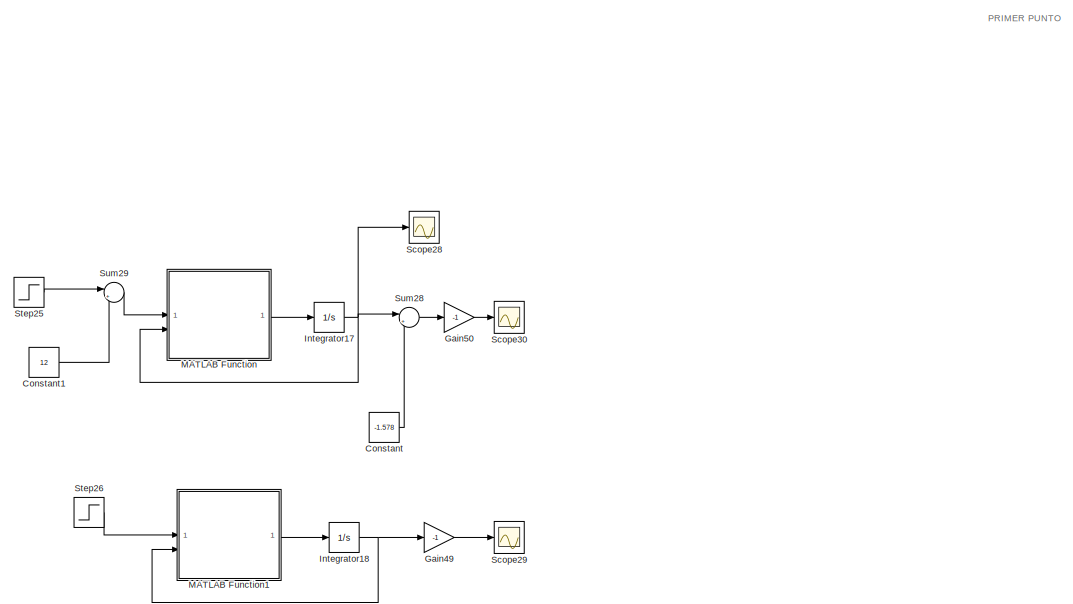
[diagram: root canvas - part 1/12, top left region]
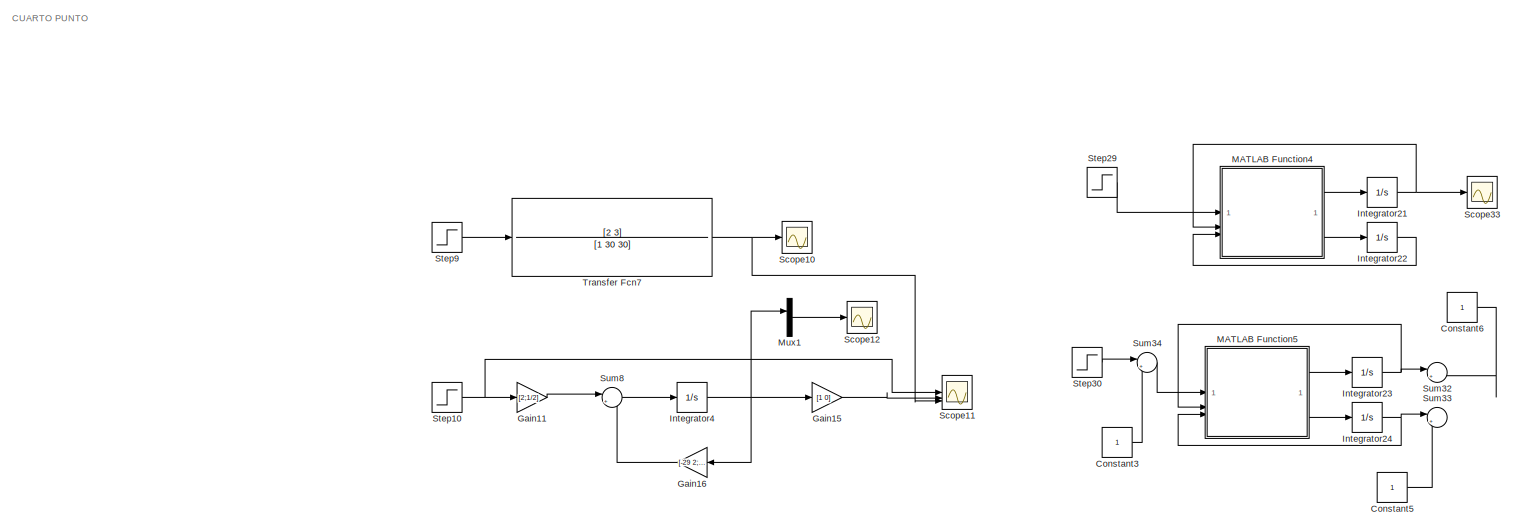
[diagram: root canvas - part 2/12, top right region]
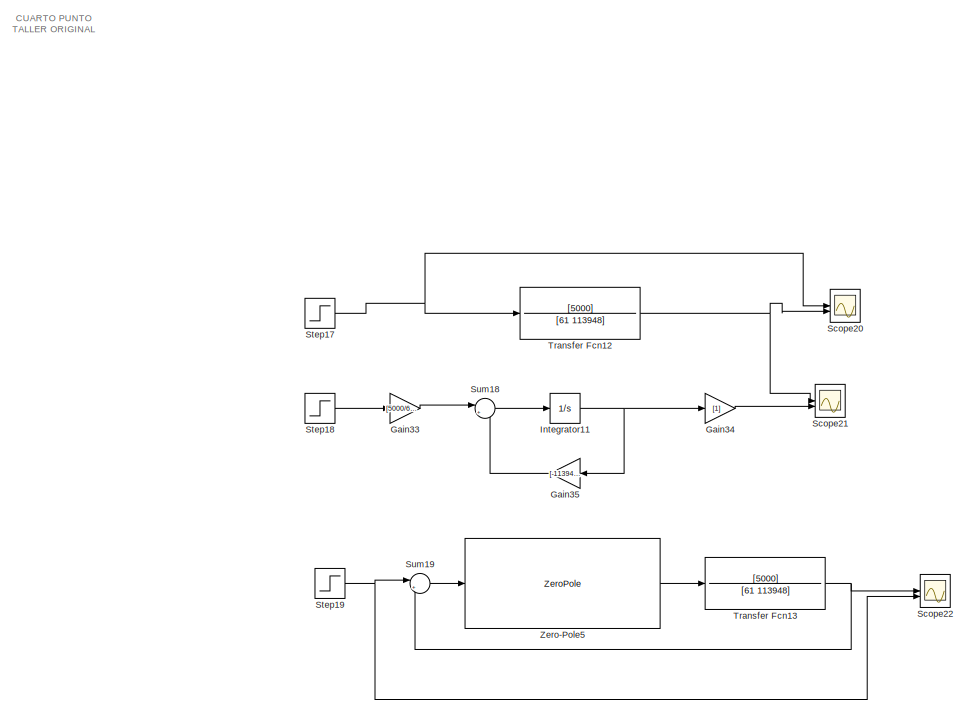
[diagram: root canvas - part 3/12, top left region]
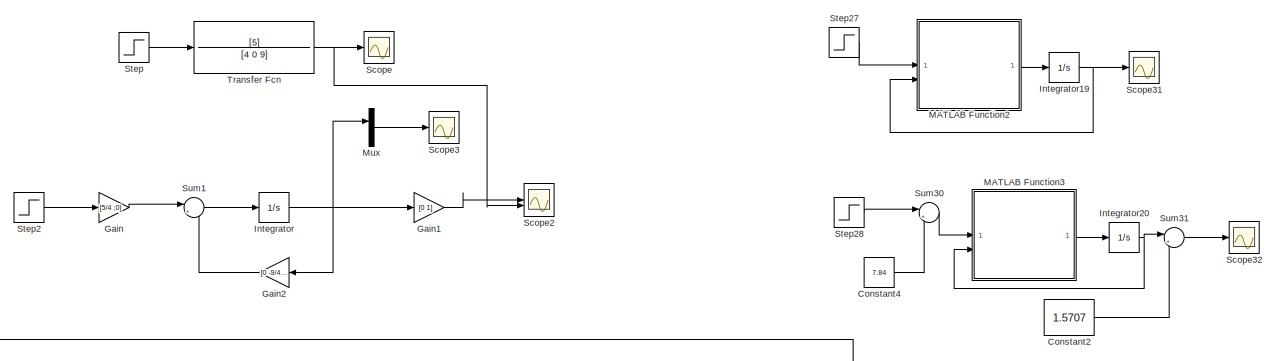
[diagram: root canvas - part 4/12, top center region]
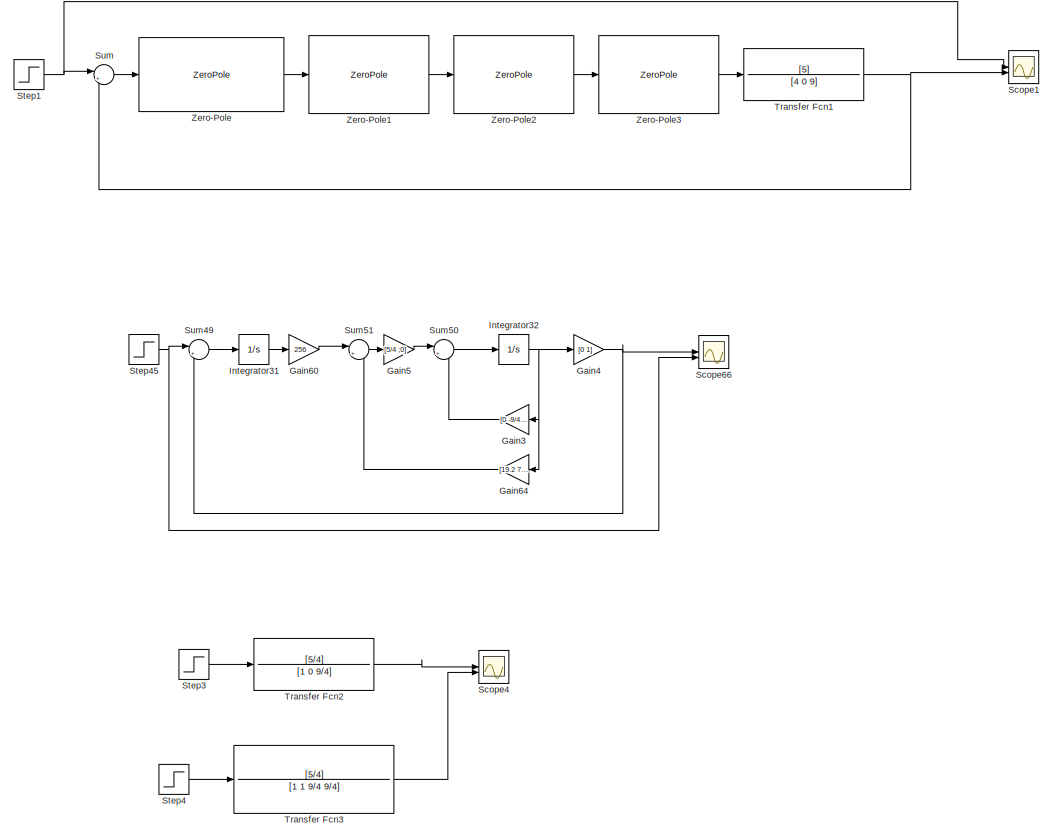
[diagram: root canvas - part 5/12, top center region]
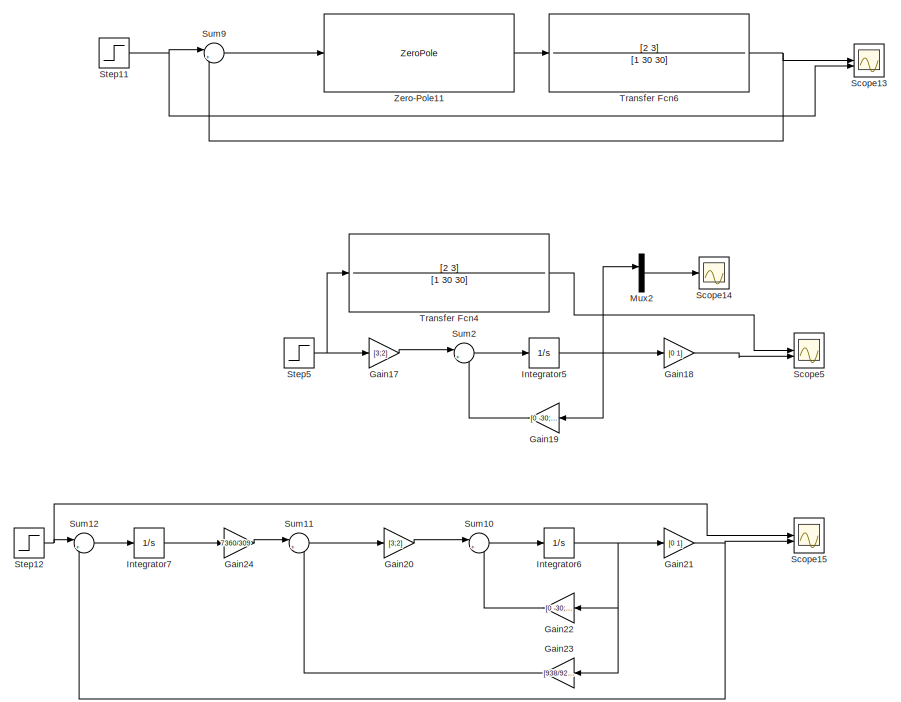
[diagram: root canvas - part 6/12, top right region]
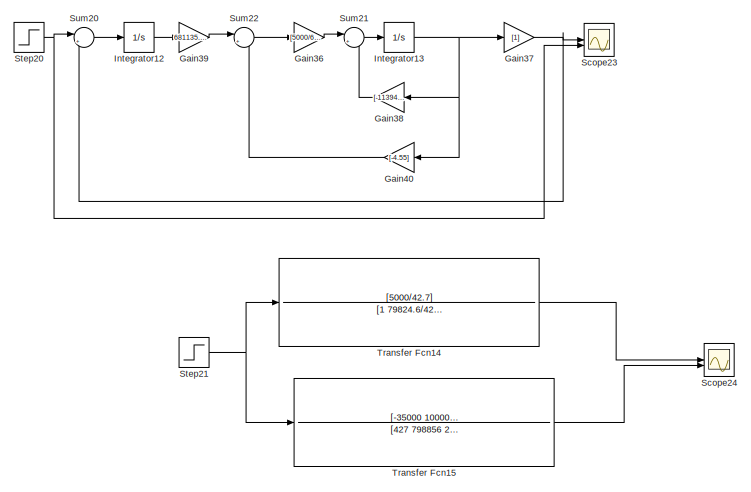
[diagram: root canvas - part 7/12, middle left region]
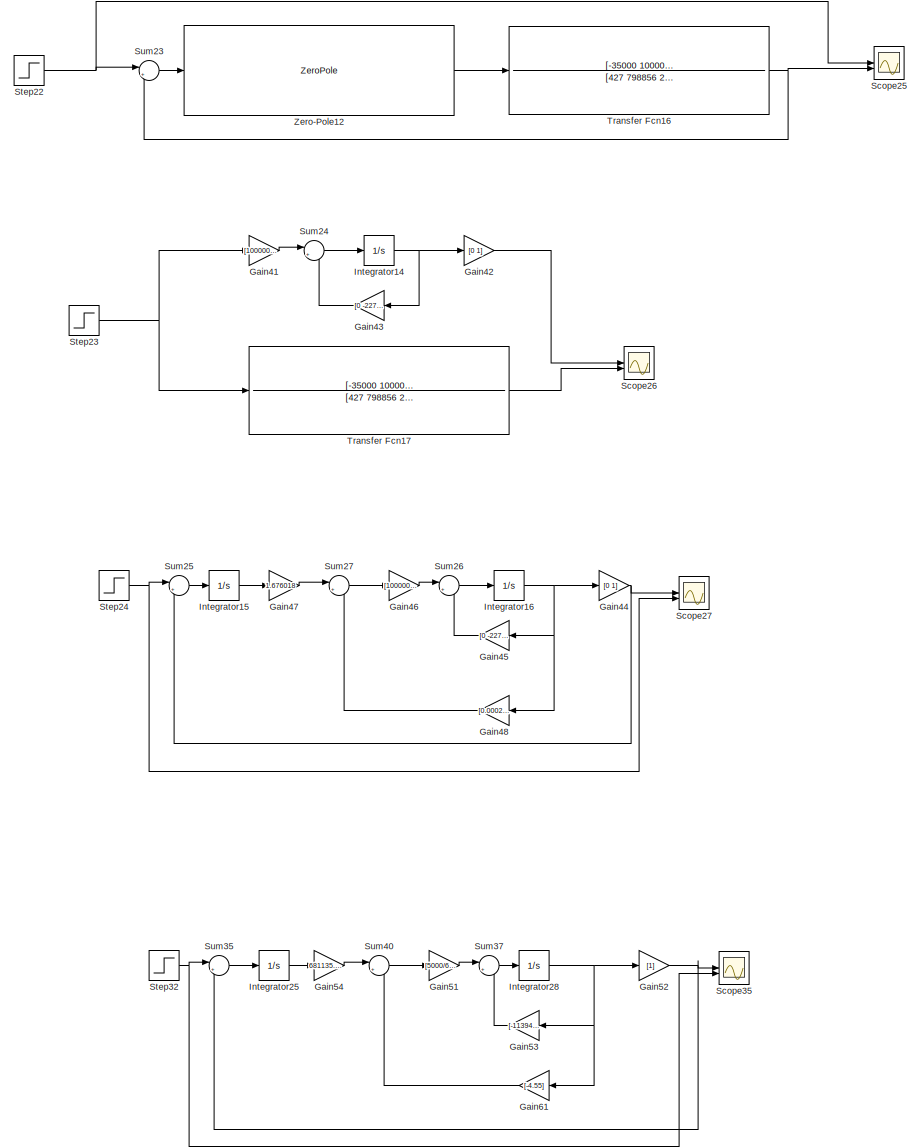
[diagram: root canvas - part 8/12, middle left region]
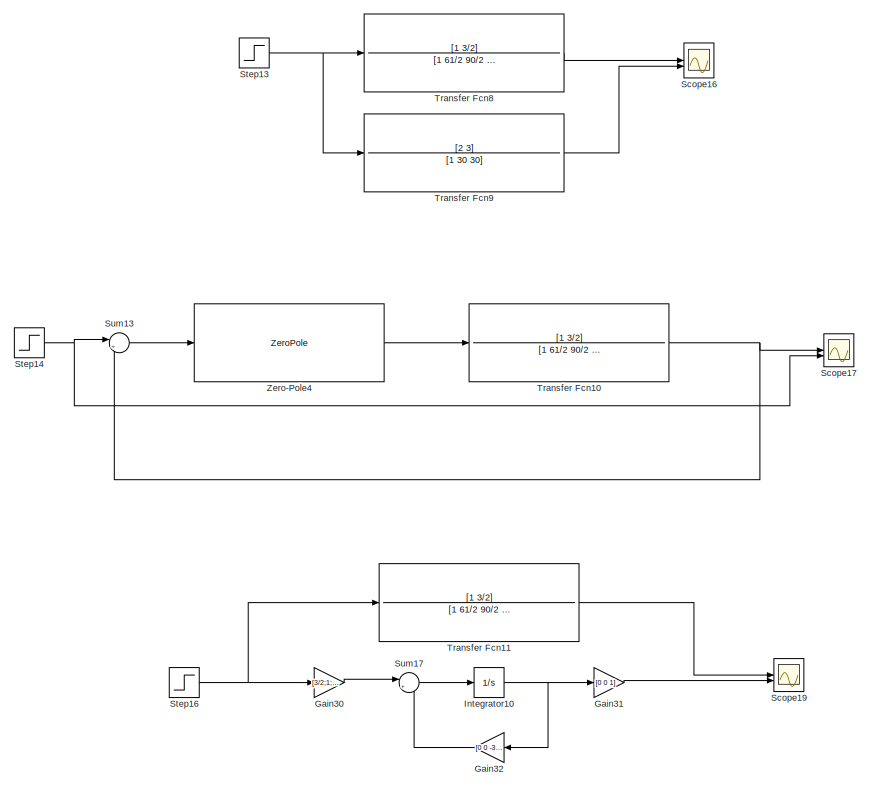
[diagram: root canvas - part 9/12, middle right region]
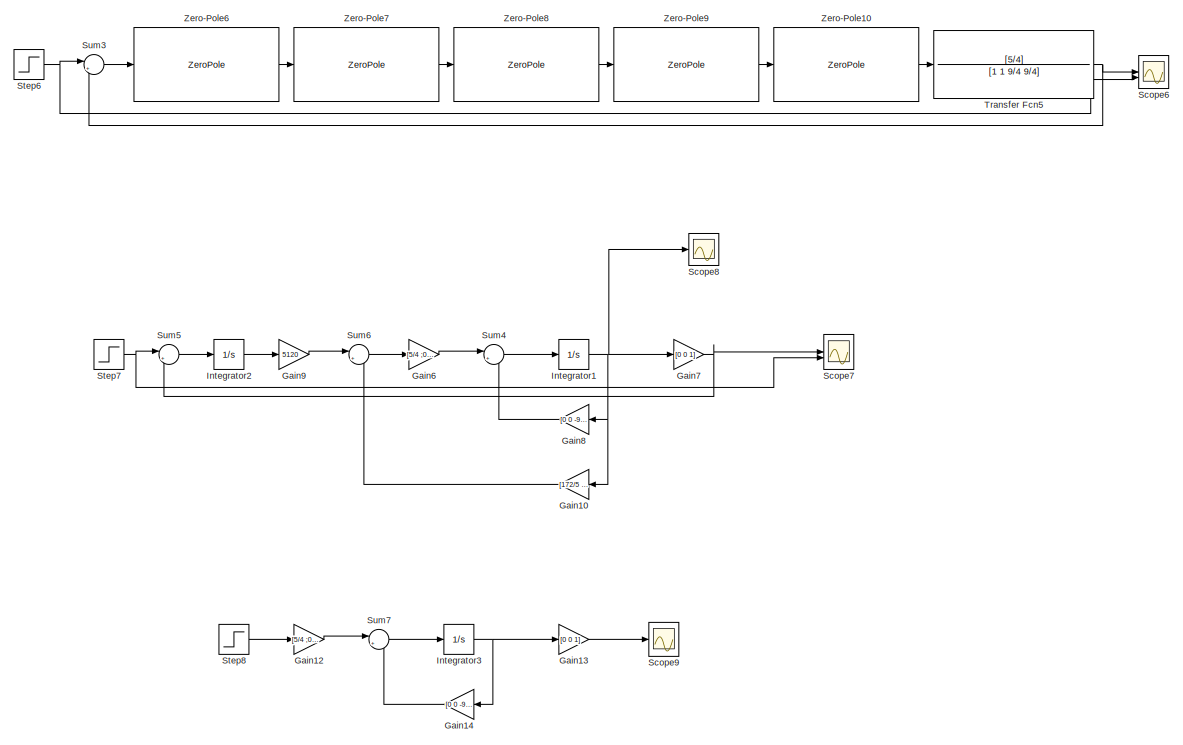
[diagram: root canvas - part 10/12, central region]
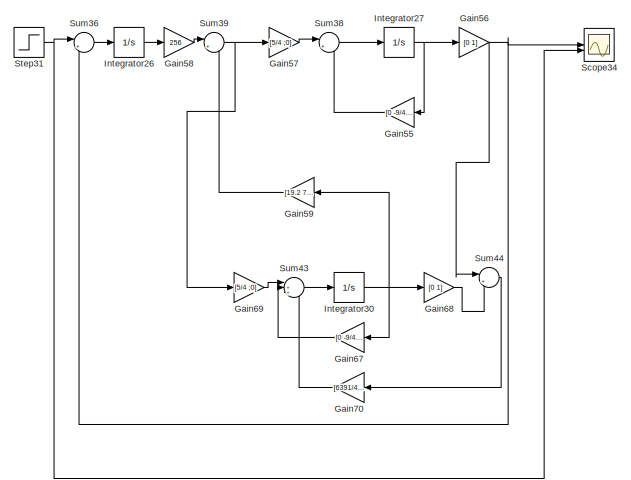
[diagram: root canvas - part 11/12, bottom center region]
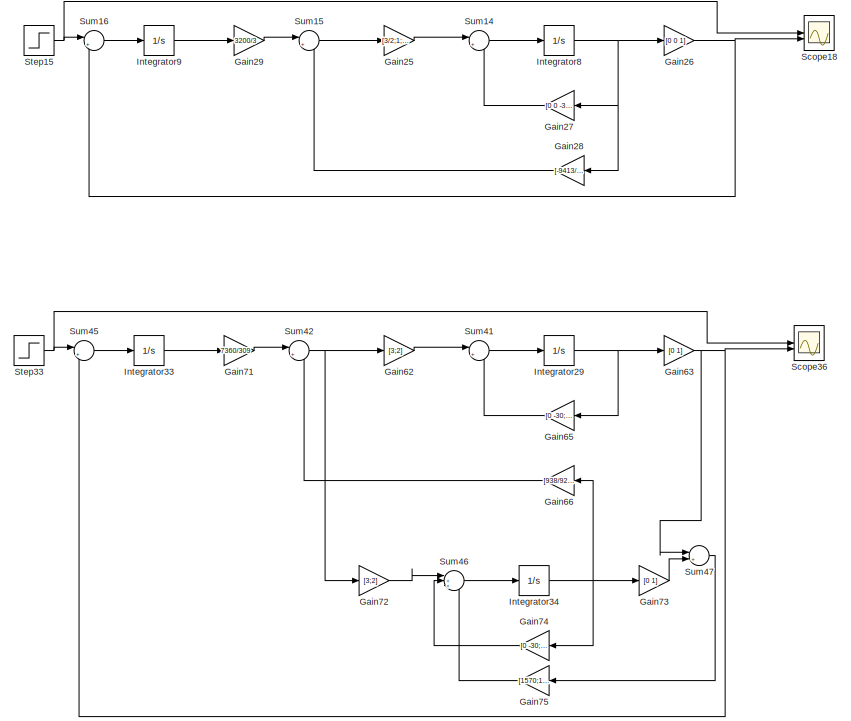
[diagram: root canvas - part 12/12, bottom right region]
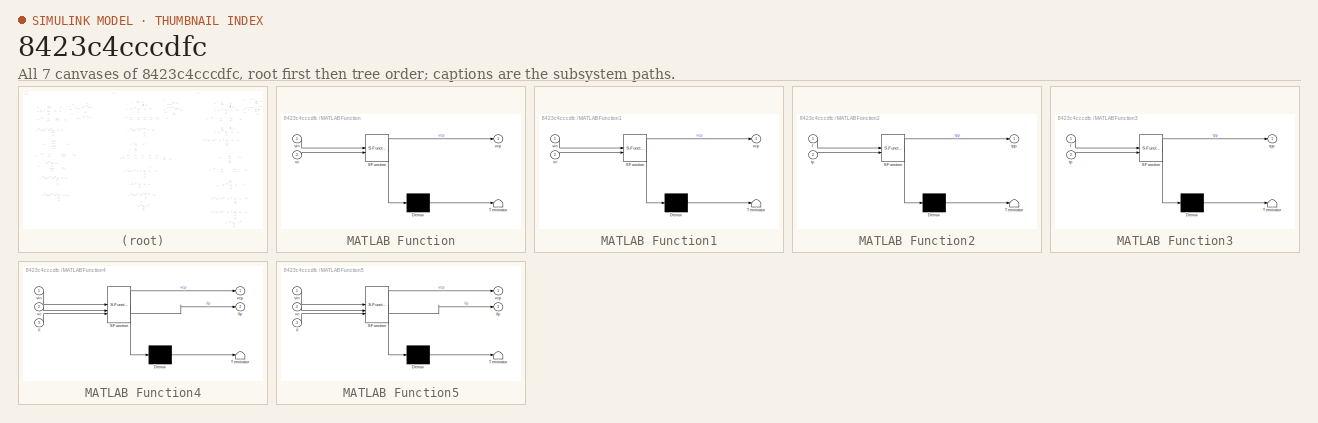
[diagram: thumbnail index - all 7 canvases of the model, root first then tree order]
MODEL slx_8423c4cccdfc
KIND model
CONFIG AbsTol = auto
CONFIG EnableMultiTasking = off
CONFIG FixedStep = auto
CONFIG MaxStep = auto
CONFIG MinStep = auto
CONFIG RelTol = 1e-3
CONFIG SampleTimeConstraint = Unconstrained
CONFIG SolverName = VariableStepAuto
CONFIG StartTime = 0.0
CONFIG StopTime = 10
BLOCK [Constant] Constant
  Value = -1.578
BLOCK [Constant] Constant1
  Value = 12
BLOCK [Constant] Constant2
  Value = 1.5707
BLOCK [Constant] Constant3
BLOCK [Constant] Constant4
  Value = 7.84
BLOCK [Constant] Constant5
BLOCK [Constant] Constant6
BLOCK [Gain] Gain
  Gain = [5/4 ;0]
  Multiplication = Matrix(K*u)
BLOCK [Gain] Gain1
  Gain = [0 1]
  Multiplication = Matrix(K*u)
BLOCK [Gain] Gain10
  Gain = [172/5 2123/5 6441/5]
  Multiplication = Matrix(K*u)
  NameLocation = top
BLOCK [Gain] Gain11
  Gain = [2;1/2]
  Multiplication = Matrix(K*u)
BLOCK [Gain] Gain12
  Gain = [5/4 ;0;0]
  Multiplication = Matrix(K*u)
BLOCK [Gain] Gain13
  Gain = [0 0 1]
  Multiplication = Matrix(K*u)
BLOCK [Gain] Gain14
  Gain = [0 0 -9/4;1 0 -9/4; 0 1 -1]
  Multiplication = Matrix(K*u)
  NameLocation = top
BLOCK [Gain] Gain15
  Gain = [1 0]
  Multiplication = Matrix(K*u)
BLOCK [Gain] Gain16
  Gain = [-29 2;-1/2 -1]
  Multiplication = Matrix(K*u)
  NameLocation = top
BLOCK [Gain] Gain17
  Gain = [3;2]
  Multiplication = Matrix(K*u)
BLOCK [Gain] Gain18
  Gain = [0 1]
  Multiplication = Matrix(K*u)
BLOCK [Gain] Gain19
  Gain = [0 -30;1 -30]
  Multiplication = Matrix(K*u)
  NameLocation = top
BLOCK [Gain] Gain2
  Gain = [0 -9/4;1 0]
  Multiplication = Matrix(K*u)
  NameLocation = top
BLOCK [Gain] Gain20
  Gain = [3;2]
  Multiplication = Matrix(K*u)
BLOCK [Gain] Gain21
  Gain = [0 1]
  Multiplication = Matrix(K*u)
BLOCK [Gain] Gain22
  Gain = [0 -30;1 -30]
  Multiplication = Matrix(K*u)
  NameLocation = top
BLOCK [Gain] Gain23
  Gain = [938/927 1738/309]
  Multiplication = Matrix(K*u)
  NameLocation = top
BLOCK [Gain] Gain24
  Gain = 7360/309
BLOCK [Gain] Gain25
  Gain = [3/2;1;0]
  Multiplication = Matrix(K*u)
BLOCK [Gain] Gain26
  Gain = [0 0 1]
  Multiplication = Matrix(K*u)
BLOCK [Gain] Gain27
  Gain = [0 0 -30/2;1 0 -90/2; 0 1 -61/2]
  Multiplication = Matrix(K*u)
  NameLocation = top
BLOCK [Gain] Gain28
  Gain = [-9413/3306 12167/204 4051/136]
  Multiplication = Matrix(K*u)
  NameLocation = top
BLOCK [Gain] Gain29
  Gain = 3200/3
BLOCK [Gain] Gain3
  Gain = [0 -9/4;1 0]
  Multiplication = Matrix(K*u)
  NameLocation = top
BLOCK [Gain] Gain30
  Gain = [3/2;1;0]
  Multiplication = Matrix(K*u)
BLOCK [Gain] Gain31
  Gain = [0 0 1]
  Multiplication = Matrix(K*u)
BLOCK [Gain] Gain32
  Gain = [0 0 -30/2;1 0 -90/2; 0 1 -61/2]
  Multiplication = Matrix(K*u)
  NameLocation = top
BLOCK [Gain] Gain33
  Gain = [5000/61]
  Multiplication = Matrix(K*u)
BLOCK [Gain] Gain34
  Gain = [1]
  Multiplication = Matrix(K*u)
BLOCK [Gain] Gain35
  Gain = [-113948/61]
  Multiplication = Matrix(K*u)
  NameLocation = top
BLOCK [Gain] Gain36
  Gain = [5000/61]
  Multiplication = Matrix(K*u)
BLOCK [Gain] Gain37
  Gain = [1]
  Multiplication = Matrix(K*u)
BLOCK [Gain] Gain38
  Gain = [-113948/61]
  Multiplication = Matrix(K*u)
  NameLocation = top
BLOCK [Gain] Gain39
  Gain = 681135.56
BLOCK [Gain] Gain4
  Gain = [0 1]
  Multiplication = Matrix(K*u)
BLOCK [Gain] Gain40
  Gain = [-4.55]
  Multiplication = Matrix(K*u)
  NameLocation = top
BLOCK [Gain] Gain41
  Gain = [100000/427; -35000/427]
  Multiplication = Matrix(K*u)
BLOCK [Gain] Gain42
  Gain = [0 1]
  Multiplication = Matrix(K*u)
BLOCK [Gain] Gain43
  Gain = [0 -2278960/427; 1 -798856/427]
  Multiplication = Matrix(K*u)
  NameLocation = top
BLOCK [Gain] Gain44
  Gain = [0 1]
  Multiplication = Matrix(K*u)
BLOCK [Gain] Gain45
  Gain = [0 -2278960/427; 1 -798856/427]
  Multiplication = Matrix(K*u)
  NameLocation = top
BLOCK [Gain] Gain46
  Gain = [100000/427; -35000/427]
  Multiplication = Matrix(K*u)
BLOCK [Gain] Gain47
  Gain = 1.676018
BLOCK [Gain] Gain48
  Gain = [0.000286 22.3614]
  Multiplication = Matrix(K*u)
  NameLocation = top
BLOCK [Gain] Gain49
  Gain = -1
BLOCK [Gain] Gain5
  Gain = [5/4 ;0]
  Multiplication = Matrix(K*u)
BLOCK [Gain] Gain50
  Gain = -1
BLOCK [Gain] Gain51
  Gain = [5000/61]
  Multiplication = Matrix(K*u)
BLOCK [Gain] Gain52
  Gain = [1]
  Multiplication = Matrix(K*u)
BLOCK [Gain] Gain53
  Gain = [-113948/61]
  Multiplication = Matrix(K*u)
  NameLocation = top
BLOCK [Gain] Gain54
  Gain = 681135.56
BLOCK [Gain] Gain55
  Gain = [0 -9/4;1 0]
  Multiplication = Matrix(K*u)
  NameLocation = top
BLOCK [Gain] Gain56
  Gain = [0 1]
  Multiplication = Matrix(K*u)
BLOCK [Gain] Gain57
  Gain = [5/4 ;0]
  Multiplication = Matrix(K*u)
BLOCK [Gain] Gain58
  Gain = 256
BLOCK [Gain] Gain59
  Gain = [19.2 75]
  Multiplication = Matrix(K*u)
  NameLocation = top
BLOCK [Gain] Gain6
  Gain = [5/4 ;0;0]
  Multiplication = Matrix(K*u)
BLOCK [Gain] Gain60
  Gain = 256
BLOCK [Gain] Gain61
  Gain = [-4.55]
  Multiplication = Matrix(K*u)
  NameLocation = top
BLOCK [Gain] Gain62
  Gain = [3;2]
  Multiplication = Matrix(K*u)
BLOCK [Gain] Gain63
  Gain = [0 1]
  Multiplication = Matrix(K*u)
BLOCK [Gain] Gain64
  Gain = [19.2 75]
  Multiplication = Matrix(K*u)
  NameLocation = top
BLOCK [Gain] Gain65
  Gain = [0 -30;1 -30]
  Multiplication = Matrix(K*u)
  NameLocation = top
BLOCK [Gain] Gain66
  Gain = [938/927 1738/309]
  Multiplication = Matrix(K*u)
  NameLocation = top
BLOCK [Gain] Gain67
  Gain = [0 -9/4;1 0]
  Multiplication = Matrix(K*u)
  NameLocation = top
BLOCK [Gain] Gain68
  Gain = [0 1]
  Multiplication = Matrix(K*u)
BLOCK [Gain] Gain69
  Gain = [5/4 ;0]
  Multiplication = Matrix(K*u)
BLOCK [Gain] Gain7
  Gain = [0 0 1]
  Multiplication = Matrix(K*u)
BLOCK [Gain] Gain70
  Gain = [6391/4;40]
  Multiplication = Matrix(K*u)
  NameLocation = top
BLOCK [Gain] Gain71
  Gain = 7360/309
BLOCK [Gain] Gain72
  Gain = [3;2]
  Multiplication = Matrix(K*u)
BLOCK [Gain] Gain73
  Gain = [0 1]
  Multiplication = Matrix(K*u)
BLOCK [Gain] Gain74
  Gain = [0 -30;1 -30]
  Multiplication = Matrix(K*u)
  NameLocation = top
BLOCK [Gain] Gain75
  Gain = [1570;10]
  Multiplication = Matrix(K*u)
  NameLocation = top
BLOCK [Gain] Gain8
  Gain = [0 0 -9/4;1 0 -9/4; 0 1 -1]
  Multiplication = Matrix(K*u)
  NameLocation = top
BLOCK [Gain] Gain9
  Gain = 5120
BLOCK [Integrator] Integrator
BLOCK [Integrator] Integrator1
BLOCK [Integrator] Integrator10
BLOCK [Integrator] Integrator11
BLOCK [Integrator] Integrator12
BLOCK [Integrator] Integrator13
BLOCK [Integrator] Integrator14
BLOCK [Integrator] Integrator15
BLOCK [Integrator] Integrator16
BLOCK [Integrator] Integrator17
BLOCK [Integrator] Integrator18
BLOCK [Integrator] Integrator19
BLOCK [Integrator] Integrator2
BLOCK [Integrator] Integrator20
BLOCK [Integrator] Integrator21
BLOCK [Integrator] Integrator22
BLOCK [Integrator] Integrator23
BLOCK [Integrator] Integrator24
BLOCK [Integrator] Integrator25
BLOCK [Integrator] Integrator26
BLOCK [Integrator] Integrator27
BLOCK [Integrator] Integrator28
BLOCK [Integrator] Integrator29
BLOCK [Integrator] Integrator3
BLOCK [Integrator] Integrator30
BLOCK [Integrator] Integrator31
BLOCK [Integrator] Integrator32
BLOCK [Integrator] Integrator33
BLOCK [Integrator] Integrator34
BLOCK [Integrator] Integrator4
BLOCK [Integrator] Integrator5
BLOCK [Integrator] Integrator6
BLOCK [Integrator] Integrator7
BLOCK [Integrator] Integrator8
BLOCK [Integrator] Integrator9
BLOCK [SubSystem] MATLAB Function
  ErrorFcn = Stateflow.Translate.translate
  PermitHierarchicalResolution = ExplicitOnly
  SFBlockType = MATLAB Function
  TreatAsAtomicUnit = on
BLOCK [Demux] MATLAB Function/ Demux 
  Outputs = 1
BLOCK [S-Function] MATLAB Function/ SFunction 
  EnableBusSupport = on
  FunctionName = sf_sfun
  PortCounts = [2 2]
  SFcnIsStateOwnerBlock = off
  SFunctionDeploymentMode = off
  Tag = Stateflow S-Function 2
BLOCK [Terminator] MATLAB Function/ Terminator 
BLOCK [Inport] MATLAB Function/vc
  Port = 2
BLOCK [Outport] MATLAB Function/vcp
BLOCK [Inport] MATLAB Function/vin
BLOCK [SubSystem] MATLAB Function1
  ErrorFcn = Stateflow.Translate.translate
  PermitHierarchicalResolution = ExplicitOnly
  SFBlockType = MATLAB Function
  TreatAsAtomicUnit = on
BLOCK [Demux] MATLAB Function1/ Demux 
  Outputs = 1
BLOCK [S-Function] MATLAB Function1/ SFunction 
  EnableBusSupport = on
  FunctionName = sf_sfun
  PortCounts = [2 2]
  SFcnIsStateOwnerBlock = off
  SFunctionDeploymentMode = off
  Tag = Stateflow S-Function 1
BLOCK [Terminator] MATLAB Function1/ Terminator 
BLOCK [Inport] MATLAB Function1/vc
  Port = 2
BLOCK [Outport] MATLAB Function1/vcp
BLOCK [Inport] MATLAB Function1/vin
BLOCK [SubSystem] MATLAB Function2
  ErrorFcn = Stateflow.Translate.translate
  PermitHierarchicalResolution = ExplicitOnly
  SFBlockType = MATLAB Function
  TreatAsAtomicUnit = on
BLOCK [Demux] MATLAB Function2/ Demux 
  Outputs = 1
BLOCK [S-Function] MATLAB Function2/ SFunction 
  EnableBusSupport = on
  FunctionName = sf_sfun
  PortCounts = [2 2]
  SFcnIsStateOwnerBlock = off
  SFunctionDeploymentMode = off
  Tag = Stateflow S-Function 3
BLOCK [Terminator] MATLAB Function2/ Terminator 
BLOCK [Inport] MATLAB Function2/f
BLOCK [Inport] MATLAB Function2/tp
  Port = 2
BLOCK [Outport] MATLAB Function2/tpp
BLOCK [SubSystem] MATLAB Function3
  ErrorFcn = Stateflow.Translate.translate
  PermitHierarchicalResolution = ExplicitOnly
  SFBlockType = MATLAB Function
  TreatAsAtomicUnit = on
BLOCK [Demux] MATLAB Function3/ Demux 
  Outputs = 1
BLOCK [S-Function] MATLAB Function3/ SFunction 
  EnableBusSupport = on
  FunctionName = sf_sfun
  PortCounts = [2 2]
  SFcnIsStateOwnerBlock = off
  SFunctionDeploymentMode = off
  Tag = Stateflow S-Function 4
BLOCK [Terminator] MATLAB Function3/ Terminator 
BLOCK [Inport] MATLAB Function3/f
BLOCK [Inport] MATLAB Function3/tp
  Port = 2
BLOCK [Outport] MATLAB Function3/tpp
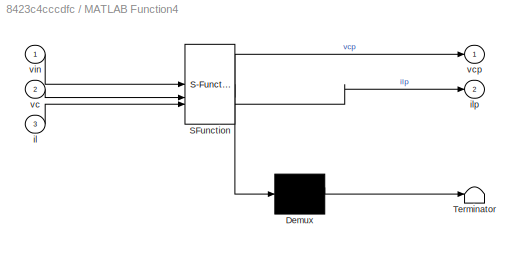
BLOCK [SubSystem] MATLAB Function4
  ErrorFcn = Stateflow.Translate.translate
  PermitHierarchicalResolution = ExplicitOnly
  SFBlockType = MATLAB Function
  TreatAsAtomicUnit = on
BLOCK [Demux] MATLAB Function4/ Demux 
  Outputs = 1
BLOCK [S-Function] MATLAB Function4/ SFunction 
  EnableBusSupport = on
  FunctionName = sf_sfun
  PortCounts = [3 3]
  SFcnIsStateOwnerBlock = off
  SFunctionDeploymentMode = off
  Tag = Stateflow S-Function 5
BLOCK [Terminator] MATLAB Function4/ Terminator 
BLOCK [Inport] MATLAB Function4/il
  Port = 3
BLOCK [Outport] MATLAB Function4/ilp
  Port = 2
BLOCK [Inport] MATLAB Function4/vc
  Port = 2
BLOCK [Outport] MATLAB Function4/vcp
BLOCK [Inport] MATLAB Function4/vin
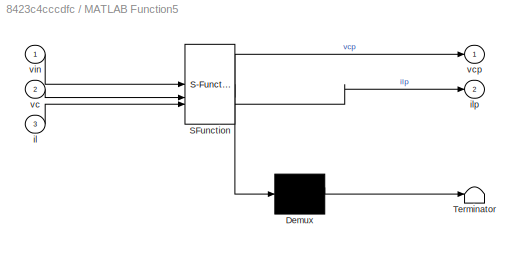
BLOCK [SubSystem] MATLAB Function5
  ErrorFcn = Stateflow.Translate.translate
  PermitHierarchicalResolution = ExplicitOnly
  SFBlockType = MATLAB Function
  TreatAsAtomicUnit = on
BLOCK [Demux] MATLAB Function5/ Demux 
  Outputs = 1
BLOCK [S-Function] MATLAB Function5/ SFunction 
  EnableBusSupport = on
  FunctionName = sf_sfun
  PortCounts = [3 3]
  SFcnIsStateOwnerBlock = off
  SFunctionDeploymentMode = off
  Tag = Stateflow S-Function 6
BLOCK [Terminator] MATLAB Function5/ Terminator 
BLOCK [Inport] MATLAB Function5/il
  Port = 3
BLOCK [Outport] MATLAB Function5/ilp
  Port = 2
BLOCK [Inport] MATLAB Function5/vc
  Port = 2
BLOCK [Outport] MATLAB Function5/vcp
BLOCK [Inport] MATLAB Function5/vin
BLOCK [Mux] Mux
  DisplayOption = bar
  Inputs = 1
BLOCK [Mux] Mux1
  DisplayOption = bar
  Inputs = 1
BLOCK [Mux] Mux2
  DisplayOption = bar
  Inputs = 1
BLOCK [Scope] Scope
  Floating = off
  NumInputPorts = 1
  ScopeSpecificationString = Simulink.scopes.TimeScopeBlockCfg('CurrentConfiguration', extmgr.ConfigurationSet(extmgr.Configuration('Core','General UI',true),extmgr.Configuration('Core','Source UI',true),extmgr.Configuration('Sources','WiredSimulink',true),extmgr.Configuration('Visuals','Time Domain',true,'SerializedDisplays',{struct('MinYLimReal','-0.1389','MaxYLimReal','1.2501','YLabelReal','','MinYLimMag','0.00000','MaxYLi...<+1358ch>
BLOCK [Scope] Scope1
  Floating = off
  NumInputPorts = 2
  ScopeSpecificationString = Simulink.scopes.TimeScopeBlockCfg('CurrentConfiguration', extmgr.ConfigurationSet(extmgr.Configuration('Core','General UI',true),extmgr.Configuration('Core','Source UI',true),extmgr.Configuration('Sources','WiredSimulink',true,'DataLoggingVariableName','ScopeData1'),extmgr.Configuration('Visuals','Time Domain',true,'SerializedDisplays',{struct('MinYLimReal','-0.19596','MaxYLimReal','1.7636','YLabe...<+1432ch>
BLOCK [Scope] Scope10
  Floating = off
  NumInputPorts = 1
  ScopeSpecificationString = Simulink.scopes.TimeScopeBlockCfg('CurrentConfiguration', extmgr.ConfigurationSet(extmgr.Configuration('Core','General UI',true),extmgr.Configuration('Core','Source UI',true),extmgr.Configuration('Sources','WiredSimulink',true,'DataLoggingVariableName','ScopeData1'),extmgr.Configuration('Visuals','Time Domain',true,'SerializedDisplays',{struct('MinYLimReal','-0.0125','MaxYLimReal','0.1125','YLabel...<+1737ch>
BLOCK [Scope] Scope11
  Floating = off
  NumInputPorts = 3
  ScopeSpecificationString = Simulink.scopes.TimeScopeBlockCfg('CurrentConfiguration', extmgr.ConfigurationSet(extmgr.Configuration('Core','General UI',true),extmgr.Configuration('Core','Source UI',true),extmgr.Configuration('Sources','WiredSimulink',true,'DataLoggingVariableName','ScopeData2'),extmgr.Configuration('Visuals','Time Domain',true,'SerializedDisplays',{struct('MinYLimReal','-0.125','MaxYLimReal','1.125','YLabelRe...<+1428ch>
BLOCK [Scope] Scope12
  Floating = off
  NumInputPorts = 1
  ScopeSpecificationString = Simulink.scopes.TimeScopeBlockCfg('CurrentConfiguration', extmgr.ConfigurationSet(extmgr.Configuration('Core','General UI',true),extmgr.Configuration('Core','Source UI',true),extmgr.Configuration('Sources','WiredSimulink',true,'DataLoggingVariableName','ScopeData3'),extmgr.Configuration('Visuals','Time Domain',true,'SerializedDisplays',{struct('MinYLimReal','-0.05625','MaxYLimReal','0.50625','YLab...<+1388ch>
BLOCK [Scope] Scope13
  Floating = off
  NumInputPorts = 2
  ScopeSpecificationString = Simulink.scopes.TimeScopeBlockCfg('CurrentConfiguration', extmgr.ConfigurationSet(extmgr.Configuration('Core','General UI',true),extmgr.Configuration('Core','Source UI',true),extmgr.Configuration('Sources','WiredSimulink',true,'DataLoggingVariableName','ScopeData4'),extmgr.Configuration('Visuals','Time Domain',true,'SerializedDisplays',{struct('MinYLimReal','-0.12532','MaxYLimReal','1.12785','YLab...<+1463ch>
BLOCK [Scope] Scope14
  Floating = off
  NumInputPorts = 1
  ScopeSpecificationString = Simulink.scopes.TimeScopeBlockCfg('CurrentConfiguration', extmgr.ConfigurationSet(extmgr.Configuration('Core','General UI',true),extmgr.Configuration('Core','Source UI',true),extmgr.Configuration('Sources','WiredSimulink',true,'DataLoggingVariableName','ScopeData1'),extmgr.Configuration('Visuals','Time Domain',true,'SerializedDisplays',{struct('MinYLimReal','-0.05625','MaxYLimReal','0.50625','YLab...<+1388ch>
BLOCK [Scope] Scope15
  Floating = off
  NumInputPorts = 2
  ScopeSpecificationString = Simulink.scopes.TimeScopeBlockCfg('CurrentConfiguration', extmgr.ConfigurationSet(extmgr.Configuration('Core','General UI',true),extmgr.Configuration('Core','Source UI',true),extmgr.Configuration('Sources','WiredSimulink',true,'DataLoggingVariableName','ScopeData3'),extmgr.Configuration('Visuals','Time Domain',true,'SerializedDisplays',{struct('MinYLimReal','-0.125','MaxYLimReal','1.125','YLabelRe...<+1412ch>
BLOCK [Scope] Scope16
  Floating = off
  NumInputPorts = 2
  ScopeSpecificationString = Simulink.scopes.TimeScopeBlockCfg('CurrentConfiguration', extmgr.ConfigurationSet(extmgr.Configuration('Core','General UI',true),extmgr.Configuration('Core','Source UI',true),extmgr.Configuration('Sources','WiredSimulink',true,'DataLoggingVariableName','ScopeData1'),extmgr.Configuration('Visuals','Time Domain',true,'SerializedDisplays',{struct('MinYLimReal','-1.00000','MaxYLimReal','1.00000','YLab...<+1438ch>
BLOCK [Scope] Scope17
  Floating = off
  NumInputPorts = 2
  ScopeSpecificationString = Simulink.scopes.TimeScopeBlockCfg('CurrentConfiguration', extmgr.ConfigurationSet(extmgr.Configuration('Core','General UI',true),extmgr.Configuration('Core','Source UI',true),extmgr.Configuration('Sources','WiredSimulink',true,'DataLoggingVariableName','ScopeData2'),extmgr.Configuration('Visuals','Time Domain',true,'SerializedDisplays',{struct('MinYLimReal','-1.00000','MaxYLimReal','1.00000','YLab...<+1464ch>
BLOCK [Scope] Scope18
  Floating = off
  NumInputPorts = 2
  ScopeSpecificationString = Simulink.scopes.TimeScopeBlockCfg('CurrentConfiguration', extmgr.ConfigurationSet(extmgr.Configuration('Core','General UI',true),extmgr.Configuration('Core','Source UI',true),extmgr.Configuration('Sources','WiredSimulink',true,'DataLoggingVariableName','ScopeData3'),extmgr.Configuration('Visuals','Time Domain',true,'SerializedDisplays',{struct('MinYLimReal','-1.00000','MaxYLimReal','1.00000','YLab...<+1424ch>
BLOCK [Scope] Scope19
  Floating = off
  NumInputPorts = 2
  ScopeSpecificationString = Simulink.scopes.TimeScopeBlockCfg('CurrentConfiguration', extmgr.ConfigurationSet(extmgr.Configuration('Core','General UI',true),extmgr.Configuration('Core','Source UI',true),extmgr.Configuration('Sources','WiredSimulink',true,'DataLoggingVariableName','ScopeData4'),extmgr.Configuration('Visuals','Time Domain',true,'SerializedDisplays',{struct('MinYLimReal','-1.00000','MaxYLimReal','1.00000','YLab...<+1464ch>
BLOCK [Scope] Scope2
  Floating = off
  NumInputPorts = 2
  ScopeSpecificationString = Simulink.scopes.TimeScopeBlockCfg('CurrentConfiguration', extmgr.ConfigurationSet(extmgr.Configuration('Core','General UI',true),extmgr.Configuration('Core','Source UI',true),extmgr.Configuration('Sources','WiredSimulink',true,'DataLoggingVariableName','ScopeData2'),extmgr.Configuration('Visuals','Time Domain',true,'SerializedDisplays',{struct('MinYLimReal','-0.13889','MaxYLimReal','1.24999','YLab...<+1379ch>
BLOCK [Scope] Scope20
  Floating = off
  NumInputPorts = 2
  ScopeSpecificationString = Simulink.scopes.TimeScopeBlockCfg('CurrentConfiguration', extmgr.ConfigurationSet(extmgr.Configuration('Core','General UI',true),extmgr.Configuration('Core','Source UI',true),extmgr.Configuration('Sources','WiredSimulink',true,'DataLoggingVariableName','ScopeData5'),extmgr.Configuration('Visuals','Time Domain',true,'SerializedDisplays',{struct('MinYLimReal','-0.125','MaxYLimReal','1.125','YLabelRe...<+1406ch>
BLOCK [Scope] Scope21
  Floating = off
  NumInputPorts = 2
  ScopeSpecificationString = Simulink.scopes.TimeScopeBlockCfg('CurrentConfiguration', extmgr.ConfigurationSet(extmgr.Configuration('Core','General UI',true),extmgr.Configuration('Core','Source UI',true),extmgr.Configuration('Sources','WiredSimulink',true,'DataLoggingVariableName','ScopeData6'),extmgr.Configuration('Visuals','Time Domain',true,'SerializedDisplays',{struct('MinYLimReal','-0.00548','MaxYLimReal','0.04936','YLab...<+1382ch>
BLOCK [Scope] Scope22
  Floating = off
  NumInputPorts = 2
  ScopeSpecificationString = Simulink.scopes.TimeScopeBlockCfg('CurrentConfiguration', extmgr.ConfigurationSet(extmgr.Configuration('Core','General UI',true),extmgr.Configuration('Core','Source UI',true),extmgr.Configuration('Sources','WiredSimulink',true,'DataLoggingVariableName','ScopeData1'),extmgr.Configuration('Visuals','Time Domain',true,'SerializedDisplays',{struct('MinYLimReal','-0.20423','MaxYLimReal','1.83807','YLab...<+1382ch>
BLOCK [Scope] Scope23
  Floating = off
  NumInputPorts = 2
  ScopeSpecificationString = Simulink.scopes.TimeScopeBlockCfg('CurrentConfiguration', extmgr.ConfigurationSet(extmgr.Configuration('Core','General UI',true),extmgr.Configuration('Core','Source UI',true),extmgr.Configuration('Sources','WiredSimulink',true,'DataLoggingVariableName','ScopeData2'),extmgr.Configuration('Visuals','Time Domain',true,'SerializedDisplays',{struct('MinYLimReal','-0.21577','MaxYLimReal','1.94197','YLab...<+1406ch>
BLOCK [Scope] Scope24
  Floating = off
  NumInputPorts = 2
  ScopeSpecificationString = Simulink.scopes.TimeScopeBlockCfg('CurrentConfiguration', extmgr.ConfigurationSet(extmgr.Configuration('Core','General UI',true),extmgr.Configuration('Core','Source UI',true),extmgr.Configuration('Sources','WiredSimulink',true,'DataLoggingVariableName','ScopeData3'),extmgr.Configuration('Visuals','Time Domain',true,'SerializedDisplays',{struct('MinYLimReal','-0.05398','MaxYLimReal','0.05475','YLab...<+1423ch>
BLOCK [Scope] Scope25
  Floating = off
  NumInputPorts = 2
  ScopeSpecificationString = Simulink.scopes.TimeScopeBlockCfg('CurrentConfiguration', extmgr.ConfigurationSet(extmgr.Configuration('Core','General UI',true),extmgr.Configuration('Core','Source UI',true),extmgr.Configuration('Sources','WiredSimulink',true,'DataLoggingVariableName','ScopeData4'),extmgr.Configuration('Visuals','Time Domain',true,'SerializedDisplays',{struct('MinYLimReal','-0.2518','MaxYLimReal','1.13909','YLabe...<+1412ch>
BLOCK [Scope] Scope26
  Floating = off
  NumInputPorts = 2
  ScopeSpecificationString = Simulink.scopes.TimeScopeBlockCfg('CurrentConfiguration', extmgr.ConfigurationSet(extmgr.Configuration('Core','General UI',true),extmgr.Configuration('Core','Source UI',true),extmgr.Configuration('Sources','WiredSimulink',true,'DataLoggingVariableName','ScopeData1'),extmgr.Configuration('Visuals','Time Domain',true,'SerializedDisplays',{struct('MinYLimReal','-0.05398','MaxYLimReal','0.05475','YLab...<+1434ch>
BLOCK [Scope] Scope27
  Floating = off
  NumInputPorts = 2
  ScopeSpecificationString = Simulink.scopes.TimeScopeBlockCfg('CurrentConfiguration', extmgr.ConfigurationSet(extmgr.Configuration('Core','General UI',true),extmgr.Configuration('Core','Source UI',true),extmgr.Configuration('Sources','WiredSimulink',true,'DataLoggingVariableName','ScopeData2'),extmgr.Configuration('Visuals','Time Domain',true,'SerializedDisplays',{struct('MinYLimReal','-0.14645','MaxYLimReal','1.12738','YLab...<+1406ch>
BLOCK [Scope] Scope28
  Floating = off
  NumInputPorts = 1
  ScopeSpecificationString = Simulink.scopes.TimeScopeBlockCfg('CurrentConfiguration', extmgr.ConfigurationSet(extmgr.Configuration('Core','General UI',true),extmgr.Configuration('Core','Source UI',true),extmgr.Configuration('Sources','WiredSimulink',true,'DataLoggingVariableName','ScopeData1'),extmgr.Configuration('Visuals','Time Domain',true),extmgr.Configuration('Tools','Plot Navigation',true),extmgr.Configuration('Tools',...<+40ch>
BLOCK [Scope] Scope29
  Floating = off
  NumInputPorts = 1
  ScopeSpecificationString = Simulink.scopes.TimeScopeBlockCfg('CurrentConfiguration', extmgr.ConfigurationSet(extmgr.Configuration('Core','General UI',true),extmgr.Configuration('Core','Source UI',true),extmgr.Configuration('Sources','WiredSimulink',true,'DataLoggingVariableName','ScopeData2'),extmgr.Configuration('Visuals','Time Domain',true,'SerializedDisplays',{struct('MinYLimReal','-0.04098','MaxYLimReal','0.36885','YLab...<+1365ch>
BLOCK [Scope] Scope3
  Floating = off
  NumInputPorts = 1
  ScopeSpecificationString = Simulink.scopes.TimeScopeBlockCfg('CurrentConfiguration', extmgr.ConfigurationSet(extmgr.Configuration('Core','General UI',true),extmgr.Configuration('Core','Source UI',true),extmgr.Configuration('Sources','WiredSimulink',true,'DataLoggingVariableName','ScopeData3'),extmgr.Configuration('Visuals','Time Domain',true,'SerializedDisplays',{struct('MinYLimReal','-1.07564','MaxYLimReal','1.35407','YLab...<+1386ch>
BLOCK [Scope] Scope30
  Floating = off
  NumInputPorts = 1
  ScopeSpecificationString = Simulink.scopes.TimeScopeBlockCfg('CurrentConfiguration', extmgr.ConfigurationSet(extmgr.Configuration('Core','General UI',true),extmgr.Configuration('Core','Source UI',true),extmgr.Configuration('Sources','WiredSimulink',true,'DataLoggingVariableName','ScopeData3'),extmgr.Configuration('Visuals','Time Domain',true,'SerializedDisplays',{struct('MinYLimReal','-2.11079','MaxYLimReal','3.21708','YLab...<+1365ch>
BLOCK [Scope] Scope31
  Floating = off
  NumInputPorts = 1
  ScopeSpecificationString = Simulink.scopes.TimeScopeBlockCfg('CurrentConfiguration', extmgr.ConfigurationSet(extmgr.Configuration('Core','General UI',true),extmgr.Configuration('Core','Source UI',true),extmgr.Configuration('Sources','WiredSimulink',true,'DataLoggingVariableName','ScopeData4'),extmgr.Configuration('Visuals','Time Domain',true,'SerializedDisplays',{struct('MinYLimReal','-0.04097','MaxYLimReal','0.36875','YLab...<+1371ch>
BLOCK [Scope] Scope32
  Floating = off
  NumInputPorts = 1
  ScopeSpecificationString = Simulink.scopes.TimeScopeBlockCfg('CurrentConfiguration', extmgr.ConfigurationSet(extmgr.Configuration('Core','General UI',true),extmgr.Configuration('Core','Source UI',true),extmgr.Configuration('Sources','WiredSimulink',true,'DataLoggingVariableName','ScopeData5'),extmgr.Configuration('Visuals','Time Domain',true,'SerializedDisplays',{struct('MinYLimReal','-1.80073','MaxYLimReal','0.49953','YLab...<+1364ch>
BLOCK [Scope] Scope33
  Floating = off
  NumInputPorts = 1
  ScopeSpecificationString = Simulink.scopes.TimeScopeBlockCfg('CurrentConfiguration', extmgr.ConfigurationSet(extmgr.Configuration('Core','General UI',true),extmgr.Configuration('Core','Source UI',true),extmgr.Configuration('Sources','WiredSimulink',true,'DataLoggingVariableName','ScopeData6'),extmgr.Configuration('Visuals','Time Domain',true,'SerializedDisplays',{struct('MinYLimReal','-0.14922','MaxYLimReal','1.34294','YLab...<+1371ch>
BLOCK [Scope] Scope34
  Floating = off
  NumInputPorts = 2
  ScopeSpecificationString = Simulink.scopes.TimeScopeBlockCfg('CurrentConfiguration', extmgr.ConfigurationSet(extmgr.Configuration('Core','General UI',true),extmgr.Configuration('Core','Source UI',true),extmgr.Configuration('Sources','WiredSimulink',true,'DataLoggingVariableName','ScopeData1'),extmgr.Configuration('Visuals','Time Domain',true,'SerializedDisplays',{struct('MinYLimReal','-0.1449','MaxYLimReal','1.3041','YLabel...<+1400ch>
BLOCK [Scope] Scope35
  Floating = off
  NumInputPorts = 2
  ScopeSpecificationString = Simulink.scopes.TimeScopeBlockCfg('CurrentConfiguration', extmgr.ConfigurationSet(extmgr.Configuration('Core','General UI',true),extmgr.Configuration('Core','Source UI',true),extmgr.Configuration('Sources','WiredSimulink',true,'DataLoggingVariableName','ScopeData2'),extmgr.Configuration('Visuals','Time Domain',true,'SerializedDisplays',{struct('MinYLimReal','-0.21577','MaxYLimReal','1.94197','YLab...<+1406ch>
BLOCK [Scope] Scope36
  Floating = off
  NumInputPorts = 2
  ScopeSpecificationString = Simulink.scopes.TimeScopeBlockCfg('CurrentConfiguration', extmgr.ConfigurationSet(extmgr.Configuration('Core','General UI',true),extmgr.Configuration('Core','Source UI',true),extmgr.Configuration('Sources','WiredSimulink',true,'DataLoggingVariableName','ScopeData3'),extmgr.Configuration('Visuals','Time Domain',true,'SerializedDisplays',{struct('MinYLimReal','-0.125','MaxYLimReal','1.125','YLabelRe...<+1412ch>
BLOCK [Scope] Scope4
  Floating = off
  NumInputPorts = 2
  ScopeSpecificationString = Simulink.scopes.TimeScopeBlockCfg('CurrentConfiguration', extmgr.ConfigurationSet(extmgr.Configuration('Core','General UI',true),extmgr.Configuration('Core','Source UI',true),extmgr.Configuration('Sources','WiredSimulink',true,'DataLoggingVariableName','ScopeData2'),extmgr.Configuration('Visuals','Time Domain',true,'SerializedDisplays',{struct('MinYLimReal','-0.13889','MaxYLimReal','1.24999','YLab...<+1421ch>
BLOCK [Scope] Scope5
  Floating = off
  NumInputPorts = 2
  ScopeSpecificationString = Simulink.scopes.TimeScopeBlockCfg('CurrentConfiguration', extmgr.ConfigurationSet(extmgr.Configuration('Core','General UI',true),extmgr.Configuration('Core','Source UI',true),extmgr.Configuration('Sources','WiredSimulink',true,'DataLoggingVariableName','ScopeData2'),extmgr.Configuration('Visuals','Time Domain',true,'SerializedDisplays',{struct('MinYLimReal','-0.0125','MaxYLimReal','0.1125','YLabel...<+1425ch>
BLOCK [Scope] Scope6
  Floating = off
  NumInputPorts = 2
  ScopeSpecificationString = Simulink.scopes.TimeScopeBlockCfg('CurrentConfiguration', extmgr.ConfigurationSet(extmgr.Configuration('Core','General UI',true),extmgr.Configuration('Core','Source UI',true),extmgr.Configuration('Sources','WiredSimulink',true,'DataLoggingVariableName','ScopeData4'),extmgr.Configuration('Visuals','Time Domain',true,'SerializedDisplays',{struct('MinYLimReal','-0.22219','MaxYLimReal','1.99971','YLab...<+1442ch>
BLOCK [Scope] Scope66
  Floating = off
  NumInputPorts = 2
  ScopeSpecificationString = Simulink.scopes.TimeScopeBlockCfg('CurrentConfiguration', extmgr.ConfigurationSet(extmgr.Configuration('Core','General UI',true),extmgr.Configuration('Core','Source UI',true),extmgr.Configuration('Sources','WiredSimulink',true,'DataLoggingVariableName','ScopeData1'),extmgr.Configuration('Visuals','Time Domain',true,'SerializedDisplays',{struct('MinYLimReal','-0.1449','MaxYLimReal','1.3041','YLabel...<+1399ch>
BLOCK [Scope] Scope7
  Floating = off
  NumInputPorts = 2
  ScopeSpecificationString = Simulink.scopes.TimeScopeBlockCfg('CurrentConfiguration', extmgr.ConfigurationSet(extmgr.Configuration('Core','General UI',true),extmgr.Configuration('Core','Source UI',true),extmgr.Configuration('Sources','WiredSimulink',true,'DataLoggingVariableName','ScopeData1'),extmgr.Configuration('Visuals','Time Domain',true,'SerializedDisplays',{struct('MinYLimReal','-0.14445','MaxYLimReal','1.30008','YLab...<+1372ch>
BLOCK [Scope] Scope8
  Floating = off
  NumInputPorts = 1
  ScopeSpecificationString = Simulink.scopes.TimeScopeBlockCfg('CurrentConfiguration', extmgr.ConfigurationSet(extmgr.Configuration('Core','General UI',true),extmgr.Configuration('Core','Source UI',true),extmgr.Configuration('Sources','WiredSimulink',true,'DataLoggingVariableName','ScopeData2'),extmgr.Configuration('Visuals','Time Domain',true,'SerializedDisplays',{struct('MinYLimReal','-2.589','MaxYLimReal','11.26353','YLabe...<+1404ch>
BLOCK [Scope] Scope9
  Floating = off
  NumInputPorts = 1
  ScopeSpecificationString = Simulink.scopes.TimeScopeBlockCfg('CurrentConfiguration', extmgr.ConfigurationSet(extmgr.Configuration('Core','General UI',true),extmgr.Configuration('Core','Source UI',true),extmgr.Configuration('Sources','WiredSimulink',true,'DataLoggingVariableName','ScopeData4'),extmgr.Configuration('Visuals','Time Domain',true,'SerializedDisplays',{struct('MinYLimReal','-0.10786','MaxYLimReal','0.97071','YLab...<+1365ch>
BLOCK [Step] Step
  SampleTime = 0
  Time = 0
BLOCK [Step] Step1
  SampleTime = 0
BLOCK [Step] Step10
  SampleTime = 0
BLOCK [Step] Step11
  SampleTime = 0
BLOCK [Step] Step12
  SampleTime = 0
BLOCK [Step] Step13
  SampleTime = 0
BLOCK [Step] Step14
  SampleTime = 0
BLOCK [Step] Step15
  SampleTime = 0
BLOCK [Step] Step16
  SampleTime = 0
BLOCK [Step] Step17
  SampleTime = 0
  Time = 0
BLOCK [Step] Step18
  SampleTime = 0
  Time = 0
BLOCK [Step] Step19
  SampleTime = 0
  Time = 0
BLOCK [Step] Step2
  SampleTime = 0
  Time = 0
BLOCK [Step] Step20
  SampleTime = 0
  Time = 0
BLOCK [Step] Step21
  SampleTime = 0
  Time = 0
BLOCK [Step] Step22
  SampleTime = 0
  Time = 0
BLOCK [Step] Step23
  SampleTime = 0
  Time = 0
BLOCK [Step] Step24
  SampleTime = 0
  Time = 0
BLOCK [Step] Step25
  SampleTime = 0
BLOCK [Step] Step26
  SampleTime = 0
  Time = 0
BLOCK [Step] Step27
  SampleTime = 0
  Time = 0
BLOCK [Step] Step28
  SampleTime = 0
  Time = 0
BLOCK [Step] Step29
  SampleTime = 0
  Time = 0
BLOCK [Step] Step3
  SampleTime = 0
  Time = 0
BLOCK [Step] Step30
  SampleTime = 0
  Time = 0
BLOCK [Step] Step31
  SampleTime = 0
BLOCK [Step] Step32
  SampleTime = 0
  Time = 0
BLOCK [Step] Step33
  SampleTime = 0
BLOCK [Step] Step4
  SampleTime = 0
  Time = 0
BLOCK [Step] Step45
  SampleTime = 0
BLOCK [Step] Step5
  SampleTime = 0
BLOCK [Step] Step6
  SampleTime = 0
BLOCK [Step] Step7
  SampleTime = 0
BLOCK [Step] Step8
  SampleTime = 0
  Time = 0
BLOCK [Step] Step9
  SampleTime = 0
BLOCK [Sum] Sum
  Inputs = |+-
BLOCK [Sum] Sum1
  Inputs = |++
BLOCK [Sum] Sum10
  Inputs = |++
BLOCK [Sum] Sum11
  Inputs = |+-
BLOCK [Sum] Sum12
  Inputs = |+-
BLOCK [Sum] Sum13
  Inputs = |+-
BLOCK [Sum] Sum14
  Inputs = |++
BLOCK [Sum] Sum15
  Inputs = |+-
BLOCK [Sum] Sum16
  Inputs = |+-
BLOCK [Sum] Sum17
  Inputs = |++
BLOCK [Sum] Sum18
  Inputs = |++
BLOCK [Sum] Sum19
  Inputs = |+-
BLOCK [Sum] Sum2
  Inputs = |++
BLOCK [Sum] Sum20
  Inputs = |+-
BLOCK [Sum] Sum21
  Inputs = |++
BLOCK [Sum] Sum22
  Inputs = |+-
BLOCK [Sum] Sum23
  Inputs = |+-
BLOCK [Sum] Sum24
  Inputs = |++
BLOCK [Sum] Sum25
  Inputs = |+-
BLOCK [Sum] Sum26
  Inputs = |++
BLOCK [Sum] Sum27
  Inputs = |+-
BLOCK [Sum] Sum28
  Inputs = |+-
BLOCK [Sum] Sum29
  Inputs = |++
BLOCK [Sum] Sum3
  Inputs = |+-
BLOCK [Sum] Sum30
  Inputs = |++
BLOCK [Sum] Sum31
  Inputs = |+-
BLOCK [Sum] Sum32
  Inputs = |+-
BLOCK [Sum] Sum33
  Inputs = |+-
BLOCK [Sum] Sum34
  Inputs = |++
BLOCK [Sum] Sum35
  Inputs = |+-
BLOCK [Sum] Sum36
  Inputs = |+-
BLOCK [Sum] Sum37
  Inputs = |++
BLOCK [Sum] Sum38
  Inputs = |++
BLOCK [Sum] Sum39
  Inputs = |+-
BLOCK [Sum] Sum4
  Inputs = |++
BLOCK [Sum] Sum40
  Inputs = |+-
BLOCK [Sum] Sum41
  Inputs = |++
BLOCK [Sum] Sum42
  Inputs = |+-
BLOCK [Sum] Sum43
  Inputs = |+++
BLOCK [Sum] Sum44
  Inputs = |+-
BLOCK [Sum] Sum45
  Inputs = |+-
BLOCK [Sum] Sum46
  Inputs = |+++
BLOCK [Sum] Sum47
  Inputs = |+-
BLOCK [Sum] Sum49
  Inputs = |+-
BLOCK [Sum] Sum5
  Inputs = |+-
BLOCK [Sum] Sum50
  Inputs = |++
BLOCK [Sum] Sum51
  Inputs = |+-
BLOCK [Sum] Sum6
  Inputs = |+-
BLOCK [Sum] Sum7
  Inputs = |++
BLOCK [Sum] Sum8
  Inputs = |++
BLOCK [Sum] Sum9
  Inputs = |+-
BLOCK [TransferFcn] Transfer Fcn
  Denominator = [4 0 9]
  Numerator = [5]
BLOCK [TransferFcn] Transfer Fcn1
  Denominator = [4 0 9]
  Numerator = [5]
BLOCK [TransferFcn] Transfer Fcn10
  Denominator = [1 61/2 90/2 30/2]
  Numerator = [1 3/2]
BLOCK [TransferFcn] Transfer Fcn11
  Denominator = [1 61/2 90/2 30/2]
  Numerator = [1 3/2]
BLOCK [TransferFcn] Transfer Fcn12
  Denominator = [61 113948]
  Numerator = [5000]
BLOCK [TransferFcn] Transfer Fcn13
  Denominator = [61 113948]
  Numerator = [5000]
BLOCK [TransferFcn] Transfer Fcn14
  Denominator = [1 79824.6/42.7 113948/42.7]
  Numerator = [5000/42.7]
BLOCK [TransferFcn] Transfer Fcn15
  Denominator = [427 798856 2278960]
  Numerator = [-35000 100000]
BLOCK [TransferFcn] Transfer Fcn16
  Denominator = [427 798856 2278960]
  Numerator = [-35000 100000]
BLOCK [TransferFcn] Transfer Fcn17
  Denominator = [427 798856 2278960]
  Numerator = [-35000 100000]
BLOCK [TransferFcn] Transfer Fcn2
  Denominator = [1 0 9/4]
  Numerator = [5/4]
BLOCK [TransferFcn] Transfer Fcn3
  Denominator = [1 1 9/4 9/4]
  Numerator = [5/4]
BLOCK [TransferFcn] Transfer Fcn4
  Denominator = [1 30 30]
  Numerator = [2 3]
BLOCK [TransferFcn] Transfer Fcn5
  Denominator = [1 1 9/4 9/4]
  Numerator = [5/4]
BLOCK [TransferFcn] Transfer Fcn6
  Denominator = [1 30 30]
  Numerator = [2 3]
BLOCK [TransferFcn] Transfer Fcn7
  Denominator = [1 30 30]
  Numerator = [2 3]
BLOCK [TransferFcn] Transfer Fcn8
  Denominator = [1 61/2 90/2 30/2]
  Numerator = [1 3/2]
BLOCK [TransferFcn] Transfer Fcn9
  Denominator = [1 30 30]
  Numerator = [2 3]
BLOCK [ZeroPole] Zero-Pole
  Gain = [385.926]
  Poles = [0 -6.67]
  Zeros = [-2.34 ]
BLOCK [ZeroPole] Zero-Pole1
  Poles = [-6.67]
  Zeros = [-2.34 ]
BLOCK [ZeroPole] Zero-Pole10
  Poles = [-7.85]
  Zeros = [-2.04 ]
BLOCK [ZeroPole] Zero-Pole11
  Gain = [1866.73]
  Poles = [0 -6.54 -6.54 -6.54 -6.54 -6.54 -6.54]
  Zeros = [-2.23 -2.23 -2.23 -2.23 -2.23 -2.23  ]
BLOCK [ZeroPole] Zero-Pole12
  Gain = [29.55]
  Poles = [0 -4.26 -4.26]
  Zeros = [-2.91 -2.91]
BLOCK [ZeroPole] Zero-Pole2
  Poles = [-6.67]
  Zeros = [-2.34 ]
BLOCK [ZeroPole] Zero-Pole3
  Poles = [-6.67]
  Zeros = [-2.34 ]
BLOCK [ZeroPole] Zero-Pole4
  Gain = [861.57]
  Poles = [0 -5.72 -5.72]
  Zeros = [-2.80 -2.80]
BLOCK [ZeroPole] Zero-Pole5
  Gain = [716751.2192]
  Poles = [0 -7814.01]
  Zeros = [-7144.95 ]
BLOCK [ZeroPole] Zero-Pole6
  Gain = [5030]
  Poles = [0 -7.85]
  Zeros = [-2.04 ]
BLOCK [ZeroPole] Zero-Pole7
  Poles = [-7.85]
  Zeros = [-2.04 ]
BLOCK [ZeroPole] Zero-Pole8
  Poles = [-7.85]
  Zeros = [-2.04 ]
BLOCK [ZeroPole] Zero-Pole9
  Poles = [-7.85]
  Zeros = [-2.04 ]
ANNOTATION (root): CUARTO PUNTO
ANNOTATION (root): CUARTO PUNTO TALLER ORIGINAL
ANNOTATION (root): PRIMER PUNTO
LINE Constant1:1 -> Sum29:2
LINE Constant2:1 -> Sum31:2
LINE Constant3:1 -> Sum34:2
LINE Constant4:1 -> Sum30:2
LINE Constant5:1 -> Sum33:2
LINE Constant6:1 -> Sum32:2
LINE Constant:1 -> Sum28:2
LINE Gain10:1 -> Sum6:2
LINE Gain11:1 -> Sum8:1
LINE Gain12:1 -> Sum7:1
LINE Gain13:1 -> Scope9:1
LINE Gain14:1 -> Sum7:2
LINE Gain15:1 -> Scope11:2
LINE Gain16:1 -> Sum8:2
LINE Gain17:1 -> Sum2:1
LINE Gain18:1 -> Scope5:2
LINE Gain19:1 -> Sum2:2
LINE Gain1:1 -> Scope2:1
LINE Gain20:1 -> Sum10:1
NET Gain21:1 -> Scope15:2, Sum12:2
LINE Gain22:1 -> Sum10:2
LINE Gain23:1 -> Sum11:2
LINE Gain24:1 -> Sum11:1
LINE Gain25:1 -> Sum14:1
NET Gain26:1 -> Scope18:2, Sum16:2
LINE Gain27:1 -> Sum14:2
LINE Gain28:1 -> Sum15:2
LINE Gain29:1 -> Sum15:1
LINE Gain2:1 -> Sum1:2
LINE Gain30:1 -> Sum17:1
LINE Gain31:1 -> Scope19:2
LINE Gain32:1 -> Sum17:2
LINE Gain33:1 -> Sum18:1
LINE Gain34:1 -> Scope21:2
LINE Gain35:1 -> Sum18:2
LINE Gain36:1 -> Sum21:1
NET Gain37:1 -> Scope23:1, Sum20:2
LINE Gain38:1 -> Sum21:2
LINE Gain39:1 -> Sum22:1
LINE Gain3:1 -> Sum50:2
LINE Gain40:1 -> Sum22:2
LINE Gain41:1 -> Sum24:1
LINE Gain42:1 -> Scope26:1
LINE Gain43:1 -> Sum24:2
NET Gain44:1 -> Scope27:1, Sum25:2
LINE Gain45:1 -> Sum26:2
LINE Gain46:1 -> Sum26:1
LINE Gain47:1 -> Sum27:1
LINE Gain48:1 -> Sum27:2
LINE Gain49:1 -> Scope29:1
NET Gain4:1 -> Scope66:1, Sum49:2
LINE Gain50:1 -> Scope30:1
LINE Gain51:1 -> Sum37:1
NET Gain52:1 -> Scope35:1, Sum35:2
LINE Gain53:1 -> Sum37:2
LINE Gain54:1 -> Sum40:1
LINE Gain55:1 -> Sum38:2
NET Gain56:1 -> Scope34:1, Sum36:2, Sum44:1
LINE Gain57:1 -> Sum38:1
LINE Gain58:1 -> Sum39:1
LINE Gain59:1 -> Sum39:2
LINE Gain5:1 -> Sum50:1
LINE Gain60:1 -> Sum51:1
LINE Gain61:1 -> Sum40:2
LINE Gain62:1 -> Sum41:1
NET Gain63:1 -> Scope36:2, Sum45:2, Sum47:1
LINE Gain64:1 -> Sum51:2
LINE Gain65:1 -> Sum41:2
LINE Gain66:1 -> Sum42:2
LINE Gain67:1 -> Sum43:2
LINE Gain68:1 -> Sum44:2
LINE Gain69:1 -> Sum43:1
LINE Gain6:1 -> Sum4:1
LINE Gain70:1 -> Sum43:3
LINE Gain71:1 -> Sum42:1
LINE Gain72:1 -> Sum46:1
LINE Gain73:1 -> Sum47:2
LINE Gain74:1 -> Sum46:2
LINE Gain75:1 -> Sum46:3
NET Gain7:1 -> Scope7:1, Sum5:2
LINE Gain8:1 -> Sum4:2
LINE Gain9:1 -> Sum6:1
LINE Gain:1 -> Sum1:1
NET Integrator10:1 -> Gain31:1, Gain32:1
NET Integrator11:1 -> Gain34:1, Gain35:1
LINE Integrator12:1 -> Gain39:1
NET Integrator13:1 -> Gain37:1, Gain38:1, Gain40:1
NET Integrator14:1 -> Gain42:1, Gain43:1
LINE Integrator15:1 -> Gain47:1
NET Integrator16:1 -> Gain44:1, Gain45:1, Gain48:1
NET Integrator17:1 -> MATLAB Function:2, Scope28:1, Sum28:1
NET Integrator18:1 -> Gain49:1, MATLAB Function1:2
NET Integrator19:1 -> MATLAB Function2:2, Scope31:1
NET Integrator1:1 -> Gain10:1, Gain7:1, Gain8:1, Scope8:1
NET Integrator20:1 -> MATLAB Function3:2, Sum31:1
NET Integrator21:1 -> MATLAB Function4:2, Scope33:1
LINE Integrator22:1 -> MATLAB Function4:3
NET Integrator23:1 -> MATLAB Function5:2, Sum32:1
NET Integrator24:1 -> MATLAB Function5:3, Sum33:1
LINE Integrator25:1 -> Gain54:1
LINE Integrator26:1 -> Gain58:1
NET Integrator27:1 -> Gain55:1, Gain56:1
NET Integrator28:1 -> Gain52:1, Gain53:1, Gain61:1
NET Integrator29:1 -> Gain63:1, Gain65:1
LINE Integrator2:1 -> Gain9:1
NET Integrator30:1 -> Gain59:1, Gain67:1, Gain68:1
LINE Integrator31:1 -> Gain60:1
NET Integrator32:1 -> Gain3:1, Gain4:1, Gain64:1
LINE Integrator33:1 -> Gain71:1
NET Integrator34:1 -> Gain66:1, Gain73:1, Gain74:1
NET Integrator3:1 -> Gain13:1, Gain14:1
NET Integrator4:1 -> Gain15:1, Gain16:1, Mux1:1
NET Integrator5:1 -> Gain18:1, Gain19:1, Mux2:1
NET Integrator6:1 -> Gain21:1, Gain22:1, Gain23:1
LINE Integrator7:1 -> Gain24:1
NET Integrator8:1 -> Gain26:1, Gain27:1, Gain28:1
LINE Integrator9:1 -> Gain29:1
NET Integrator:1 -> Gain1:1, Gain2:1, Mux:1
LINE MATLAB Function1:1 -> Integrator18:1
LINE MATLAB Function2:1 -> Integrator19:1
LINE MATLAB Function3:1 -> Integrator20:1
LINE MATLAB Function4:1 -> Integrator21:1
LINE MATLAB Function4:2 -> Integrator22:1
LINE MATLAB Function5:1 -> Integrator23:1
LINE MATLAB Function5:2 -> Integrator24:1
LINE MATLAB Function:1 -> Integrator17:1
LINE Mux1:1 -> Scope12:1
LINE Mux2:1 -> Scope14:1
LINE Mux:1 -> Scope3:1
NET Step10:1 -> Gain11:1, Scope11:1
NET Step11:1 -> Scope13:2, Sum9:1
NET Step12:1 -> Scope15:1, Sum12:1
NET Step13:1 -> Transfer Fcn8:1, Transfer Fcn9:1
NET Step14:1 -> Scope17:2, Sum13:1
NET Step15:1 -> Scope18:1, Sum16:1
NET Step16:1 -> Gain30:1, Transfer Fcn11:1
NET Step17:1 -> Scope20:1, Transfer Fcn12:1
LINE Step18:1 -> Gain33:1
NET Step19:1 -> Scope22:2, Sum19:1
NET Step1:1 -> Scope1:1, Sum:1
NET Step20:1 -> Scope23:2, Sum20:1
NET Step21:1 -> Transfer Fcn14:1, Transfer Fcn15:1
NET Step22:1 -> Scope25:1, Sum23:1
NET Step23:1 -> Gain41:1, Transfer Fcn17:1
NET Step24:1 -> Scope27:2, Sum25:1
LINE Step25:1 -> Sum29:1
LINE Step26:1 -> MATLAB Function1:1
LINE Step27:1 -> MATLAB Function2:1
LINE Step28:1 -> Sum30:1
LINE Step29:1 -> MATLAB Function4:1
LINE Step2:1 -> Gain:1
LINE Step30:1 -> Sum34:1
NET Step31:1 -> Scope34:2, Sum36:1
NET Step32:1 -> Scope35:2, Sum35:1
NET Step33:1 -> Scope36:1, Sum45:1
LINE Step3:1 -> Transfer Fcn2:1
NET Step45:1 -> Scope66:2, Sum49:1
LINE Step4:1 -> Transfer Fcn3:1
NET Step5:1 -> Gain17:1, Transfer Fcn4:1
NET Step6:1 -> Scope6:2, Sum3:1
NET Step7:1 -> Scope7:2, Sum5:1
LINE Step8:1 -> Gain12:1
LINE Step9:1 -> Transfer Fcn7:1
LINE Step:1 -> Transfer Fcn:1
LINE Sum10:1 -> Integrator6:1
LINE Sum11:1 -> Gain20:1
LINE Sum12:1 -> Integrator7:1
LINE Sum13:1 -> Zero-Pole4:1
LINE Sum14:1 -> Integrator8:1
LINE Sum15:1 -> Gain25:1
LINE Sum16:1 -> Integrator9:1
LINE Sum17:1 -> Integrator10:1
LINE Sum18:1 -> Integrator11:1
LINE Sum19:1 -> Zero-Pole5:1
LINE Sum1:1 -> Integrator:1
LINE Sum20:1 -> Integrator12:1
LINE Sum21:1 -> Integrator13:1
LINE Sum22:1 -> Gain36:1
LINE Sum23:1 -> Zero-Pole12:1
LINE Sum24:1 -> Integrator14:1
LINE Sum25:1 -> Integrator15:1
LINE Sum26:1 -> Integrator16:1
LINE Sum27:1 -> Gain46:1
LINE Sum28:1 -> Gain50:1
LINE Sum29:1 -> MATLAB Function:1
LINE Sum2:1 -> Integrator5:1
LINE Sum30:1 -> MATLAB Function3:1
LINE Sum31:1 -> Scope32:1
LINE Sum34:1 -> MATLAB Function5:1
LINE Sum35:1 -> Integrator25:1
LINE Sum36:1 -> Integrator26:1
LINE Sum37:1 -> Integrator28:1
LINE Sum38:1 -> Integrator27:1
NET Sum39:1 -> Gain57:1, Gain69:1
LINE Sum3:1 -> Zero-Pole6:1
LINE Sum40:1 -> Gain51:1
LINE Sum41:1 -> Integrator29:1
NET Sum42:1 -> Gain62:1, Gain72:1
LINE Sum43:1 -> Integrator30:1
LINE Sum44:1 -> Gain70:1
LINE Sum45:1 -> Integrator33:1
LINE Sum46:1 -> Integrator34:1
LINE Sum47:1 -> Gain75:1
LINE Sum49:1 -> Integrator31:1
LINE Sum4:1 -> Integrator1:1
LINE Sum50:1 -> Integrator32:1
LINE Sum51:1 -> Gain5:1
LINE Sum5:1 -> Integrator2:1
LINE Sum6:1 -> Gain6:1
LINE Sum7:1 -> Integrator3:1
LINE Sum8:1 -> Integrator4:1
LINE Sum9:1 -> Zero-Pole11:1
LINE Sum:1 -> Zero-Pole:1
NET Transfer Fcn10:1 -> Scope17:1, Sum13:2
LINE Transfer Fcn11:1 -> Scope19:1
NET Transfer Fcn12:1 -> Scope20:2, Scope21:1
NET Transfer Fcn13:1 -> Scope22:1, Sum19:2
LINE Transfer Fcn14:1 -> Scope24:1
LINE Transfer Fcn15:1 -> Scope24:2
NET Transfer Fcn16:1 -> Scope25:2, Sum23:2
LINE Transfer Fcn17:1 -> Scope26:2
NET Transfer Fcn1:1 -> Scope1:2, Sum:2
LINE Transfer Fcn2:1 -> Scope4:1
LINE Transfer Fcn3:1 -> Scope4:2
LINE Transfer Fcn4:1 -> Scope5:1
NET Transfer Fcn5:1 -> Scope6:1, Sum3:2
NET Transfer Fcn6:1 -> Scope13:1, Sum9:2
NET Transfer Fcn7:1 -> Scope10:1, Scope11:3
LINE Transfer Fcn8:1 -> Scope16:1
LINE Transfer Fcn9:1 -> Scope16:2
NET Transfer Fcn:1 -> Scope2:2, Scope:1
LINE Zero-Pole10:1 -> Transfer Fcn5:1
LINE Zero-Pole11:1 -> Transfer Fcn6:1
LINE Zero-Pole12:1 -> Transfer Fcn16:1
LINE Zero-Pole1:1 -> Zero-Pole2:1
LINE Zero-Pole2:1 -> Zero-Pole3:1
LINE Zero-Pole3:1 -> Transfer Fcn1:1
LINE Zero-Pole4:1 -> Transfer Fcn10:1
LINE Zero-Pole5:1 -> Transfer Fcn13:1
LINE Zero-Pole6:1 -> Zero-Pole7:1
LINE Zero-Pole7:1 -> Zero-Pole8:1
LINE Zero-Pole8:1 -> Zero-Pole9:1
LINE Zero-Pole9:1 -> Zero-Pole10:1
LINE Zero-Pole:1 -> Zero-Pole1:1
note: NET lines group one-source signal fan-out (src -> all destinations, sorted); 1:1 wires keep LINE
CHART MATLAB Function1 states=1 transitions=1
  STATE_LABEL 'eML_blk_kernel()'
  STATE_LABEL 'SCRIPT:\nfunction vcp  = fcn(vin,vc)\nR3=1000;\nR2=220;\nR1=10;\nk1=R3/(R2*R1+R3*R1);\nc=1*10e-3;\n\nvcp=-1/(4*c)*vc-(vin*k1)/c;\n\n'
CHART MATLAB Function states=1 transitions=1
  STATE_LABEL 'eML_blk_kernel()'
  STATE_LABEL 'SCRIPT:\nfunction vcp  = fcn(vin,vc)\nR3=1000;\nR2=220;\nR1=10;\nk1=R3/(R2*R1+R3*R1);\nc=1*10e-3;\n\nvcp=-1/(4*c)*vc-(vin*k1)/c;\n\n'
CHART MATLAB Function2 states=1 transitions=1
  STATE_LABEL 'eML_blk_kernel()'
  STATE_LABEL 'SCRIPT:\nfunction tpp = fcn(f,tp)\nm=0.8;\ng=9.8;\nl=1;\nk=10;\n\n\ntpp=f/(m*l^2)-g/l*sin(tp)+k/(2*m)*sin(tp)*cos(tp);\n\n'
CHART MATLAB Function3 states=1 transitions=1
  STATE_LABEL 'eML_blk_kernel()'
  STATE_LABEL 'SCRIPT:\nfunction tpp = fcn(f,tp)\nm=0.8;\ng=9.8;\nl=1;\nk=10;\n\n\ntpp=f/(m*l^2)-g/l*sin(tp)+k/(2*m)*sin(tp)*cos(tp);\n\n'
CHART MATLAB Function4 states=1 transitions=1
  STATE_LABEL 'eML_blk_kernel()'
  STATE_LABEL 'SCRIPT:\nfunction [vcp,ilp] = fcn(vin,vc,il)\nc=1/2;\nL=2;\nR=2;\nilp=vin-vc/L-2/L*il;\nvcp=-1/(8*c)*vc^3+il/c+vin/c-vc/c;\n\n'
CHART MATLAB Function5 states=1 transitions=1
  STATE_LABEL 'eML_blk_kernel()'
  STATE_LABEL 'SCRIPT:\nfunction [vcp,ilp] = fcn(vin,vc,il)\nc=1/2;\nL=2;\nR=2;\nilp=vin-vc/L-2/L*il;\nvcp=-1/(8*c)*vc^3+il/c+vin/c-vc/c;\n\n'
CHART  states=0 transitions=0
CHART  states=0 transitions=0
CHART  states=0 transitions=0
CHART  states=0 transitions=0
CHART  states=0 transitions=0
CHART  states=0 transitions=0
